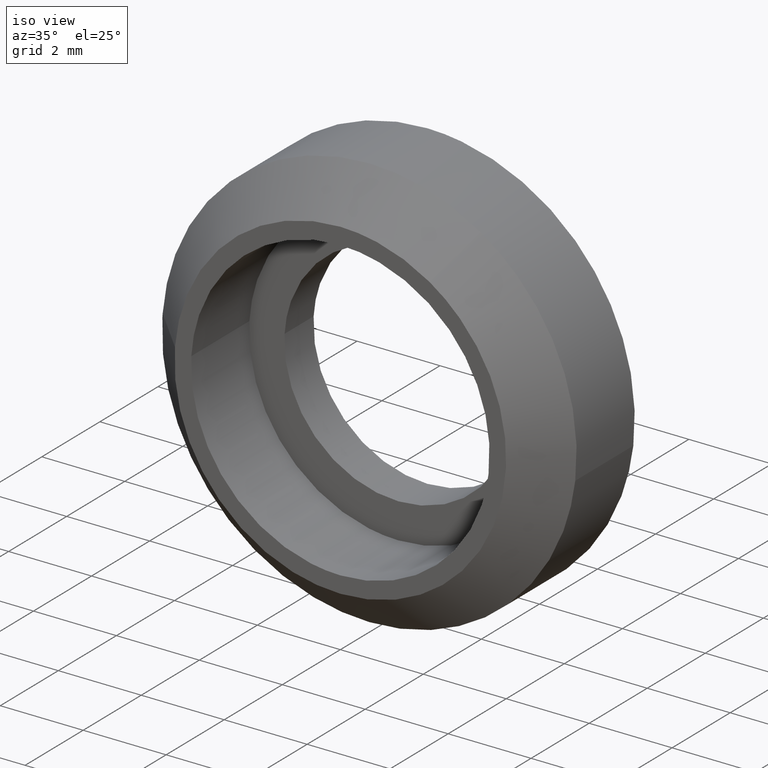
[diagram: clean part render]
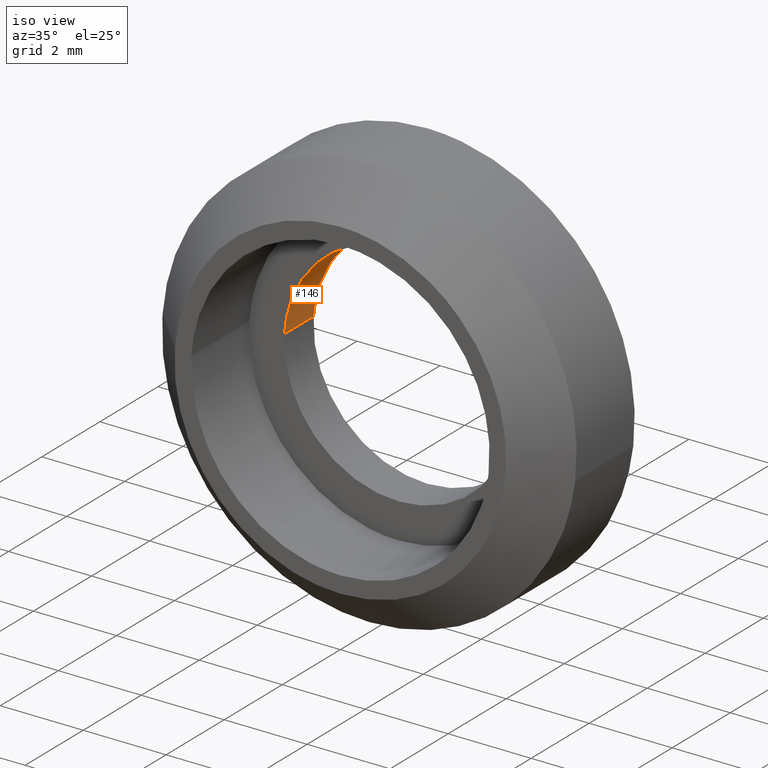
[diagram: same view with one face highlighted and labeled with its STEP entity id]
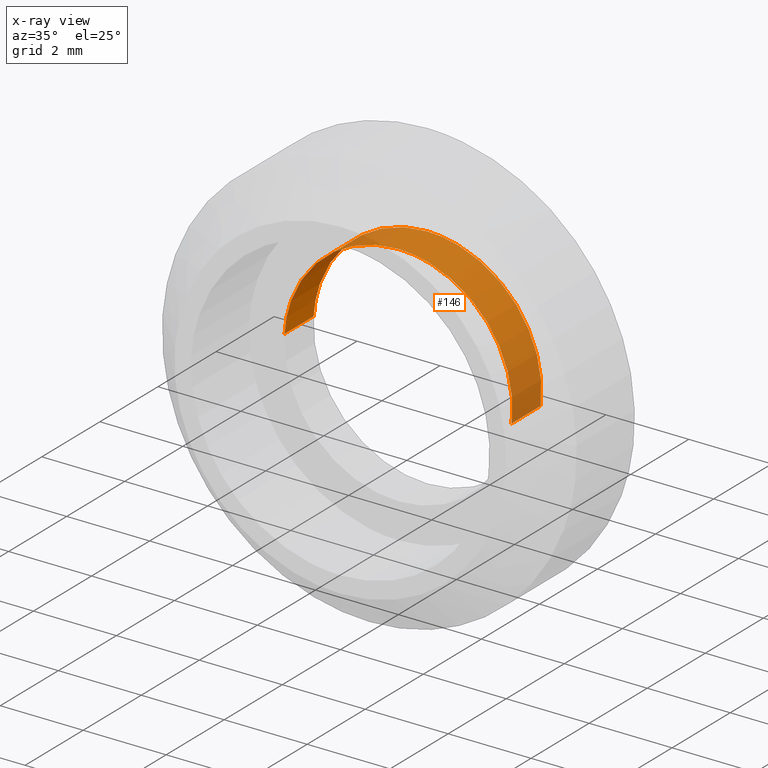
[diagram: x-ray of the same camera — body ghosted, the highlighted face saturated]
A machine part, iso view. The second image highlights one B-rep face of the part: STEP entity #146.
The next image is the same camera in x-ray: the body ghosted, the highlighted face saturated — about 84% of this face is hidden behind the body in this view.
In plain terms, the highlighted face is a freeform B-spline surface patch.
Its self-contained STEP definition (entity closure, byte-faithful):
#44=CARTESIAN_POINT('',(2.730776197500084,1.025000000000000,-0.324594145306086));
#45=CARTESIAN_POINT('',(2.740065942483667,1.025000000000000,-0.246440503754439));
#46=CARTESIAN_POINT('',(2.744870695660134,1.025000000000000,-0.167883483720857));
#47=CARTESIAN_POINT('',(2.912754179380990,1.025000000000000,2.576987211939278));
#48=CARTESIAN_POINT('',(0.167883483720857,1.025000000000000,2.744870695660134));
#49=CARTESIAN_POINT('',(-2.576987211939278,1.025000000000000,2.912754179380990));
#50=CARTESIAN_POINT('',(-2.744870695660133,1.025000000000000,0.167883483720857));
#51=CARTESIAN_POINT('',(2.730776197500084,-0.025625000000000,-0.324594145306086));
#52=CARTESIAN_POINT('',(2.740065942483667,-0.025625000000000,-0.246440503754439));
#53=CARTESIAN_POINT('',(2.744870695660134,-0.025625000000000,-0.167883483720857));
#54=CARTESIAN_POINT('',(2.912754179380990,-0.025625000000000,2.576987211939278));
#55=CARTESIAN_POINT('',(0.167883483720857,-0.025625000000000,2.744870695660134));
#56=CARTESIAN_POINT('',(-2.576987211939278,-0.025625000000000,2.912754179380990));
#57=CARTESIAN_POINT('',(-2.744870695660133,-0.025625000000000,0.167883483720857));
#65=(BOUNDED_SURFACE()B_SPLINE_SURFACE(2,1,((#44,#51),(#45,#52),(#46,#53),(#47,#54),(#48,#55),(#49,#56),(#50,#57)),.UNSPECIFIED.,.F.,.F.,.U.)B_SPLINE_SURFACE_WITH_KNOTS((3,2,2,3),(2,2),(0.0,0.182253967444162,4.738603153548208,9.294952339652255),(0.0,1.0),.UNSPECIFIED.)GEOMETRIC_REPRESENTATION_ITEM()RATIONAL_B_SPLINE_SURFACE(((0.977505800795127,0.977505800795127),(0.988284271247462,0.988284271247462),(1.0,1.0),(0.707106781186548,0.707106781186548),(1.0,1.0),(0.707106781186548,0.707106781186548),(1.0,1.0)))REPRESENTATION_ITEM('')SURFACE());
#66=CARTESIAN_POINT('',(2.730776418423933,1.000000000000025,-0.324592286686328));
#67=VERTEX_POINT('',#66);
#68=CARTESIAN_POINT('',(4.898425E-016,1.0,2.750000000000000));
#69=VERTEX_POINT('',#68);
#70=CARTESIAN_POINT('',(2.730776418423933,1.000000000000025,-0.324592286686328));
#71=CARTESIAN_POINT('',(2.750000000000001,1.0,-0.162865389908423));
#72=CARTESIAN_POINT('',(2.750000000000000,1.0,0.0));
#73=CARTESIAN_POINT('',(2.750000000000000,1.0,2.750000000000000));
#74=CARTESIAN_POINT('',(4.898425E-016,1.0,2.750000000000000));
#82=(BOUNDED_CURVE()B_SPLINE_CURVE(2,(#70,#71,#72,#73,#74),.UNSPECIFIED.,.F.,.U.)B_SPLINE_CURVE_WITH_KNOTS((3,2,3),(0.229562588542570,0.250000000000000,0.500000000000000),.UNSPECIFIED.)CURVE()GEOMETRIC_REPRESENTATION_ITEM()RATIONAL_B_SPLINE_CURVE((0.956026979645492,0.976056083096074,1.0,0.707106781186548,1.0))REPRESENTATION_ITEM(''));
#83=EDGE_CURVE('',#67,#69,#82,.T.);
#84=ORIENTED_EDGE('',*,*,#83,.F.);
#85=CARTESIAN_POINT('',(2.730776415759834,5.323928E-018,-0.324592309099363));
#86=VERTEX_POINT('',#85);
#87=CARTESIAN_POINT('',(2.730776418423933,1.000000000000025,-0.324592286686328));
#88=CARTESIAN_POINT('',(2.730776415759834,5.323928E-018,-0.324592309099363));
#89=QUASI_UNIFORM_CURVE('',1,(#87,#88),.UNSPECIFIED.,.F.,.U.);
#90=EDGE_CURVE('',#67,#86,#89,.T.);
#91=ORIENTED_EDGE('',*,*,#90,.T.);
#92=CARTESIAN_POINT('',(4.898425E-016,0.0,2.750000000000000));
#93=VERTEX_POINT('',#92);
#94=CARTESIAN_POINT('',(2.730776415759835,5.323928E-018,-0.324592309099363));
#95=CARTESIAN_POINT('',(2.750000000000000,0.0,-0.162865401233412));
#96=CARTESIAN_POINT('',(2.750000000000000,0.0,0.0));
#97=CARTESIAN_POINT('',(2.750000000000000,0.0,2.750000000000000));
#98=CARTESIAN_POINT('',(4.898425E-016,0.0,2.750000000000000));
#106=(BOUNDED_CURVE()B_SPLINE_CURVE(2,(#94,#95,#96,#97,#98),.UNSPECIFIED.,.F.,.U.)B_SPLINE_CURVE_WITH_KNOTS((3,2,3),(0.229562587155464,0.250000000000000,0.500000000000000),.UNSPECIFIED.)CURVE()GEOMETRIC_REPRESENTATION_ITEM()RATIONAL_B_SPLINE_CURVE((0.956026976926705,0.976056081470978,1.0,0.707106781186548,1.0))REPRESENTATION_ITEM(''));
#107=EDGE_CURVE('',#86,#93,#106,.T.);
#108=ORIENTED_EDGE('',*,*,#107,.T.);
#109=CARTESIAN_POINT('',(-2.744870870186102,-5.204170E-017,0.167880630197805));
#110=VERTEX_POINT('',#109);
#111=CARTESIAN_POINT('',(4.898425E-016,0.0,2.750000000000000));
#112=CARTESIAN_POINT('',(-2.586944378359961,0.0,2.750000000000000));
#113=CARTESIAN_POINT('',(-2.744870870186103,-5.204170E-017,0.167880630197805));
#121=(BOUNDED_CURVE()B_SPLINE_CURVE(2,(#111,#112,#113),.UNSPECIFIED.,.F.,.U.)B_SPLINE_CURVE_WITH_KNOTS((3,3),(0.500000000000000,0.739333141618836),.UNSPECIFIED.)CURVE()GEOMETRIC_REPRESENTATION_ITEM()RATIONAL_B_SPLINE_CURVE((1.0,0.719603783130093,0.976072426112277))REPRESENTATION_ITEM(''));
#122=EDGE_CURVE('',#93,#110,#121,.T.);
#123=ORIENTED_EDGE('',*,*,#122,.T.);
#124=CARTESIAN_POINT('',(-2.744870872313038,0.999999999999963,0.167880595421523));
#125=VERTEX_POINT('',#124);
#126=CARTESIAN_POINT('',(-2.744870872313038,0.999999999999963,0.167880595421523));
#127=CARTESIAN_POINT('',(-2.744870870186102,-5.204170E-017,0.167880630197805));
#128=QUASI_UNIFORM_CURVE('',1,(#126,#127),.UNSPECIFIED.,.F.,.U.);
#129=EDGE_CURVE('',#125,#110,#128,.T.);
#130=ORIENTED_EDGE('',*,*,#129,.F.);
#131=CARTESIAN_POINT('',(4.898425E-016,1.0,2.750000000000000));
#132=CARTESIAN_POINT('',(-2.586944411196626,1.0,2.750000000000001));
#133=CARTESIAN_POINT('',(-2.744870872313038,0.999999999999963,0.167880595421523));
#141=(BOUNDED_CURVE()B_SPLINE_CURVE(2,(#131,#132,#133),.UNSPECIFIED.,.F.,.U.)B_SPLINE_CURVE_WITH_KNOTS((3,3),(0.500000000000000,0.739333143804927),.UNSPECIFIED.)CURVE()GEOMETRIC_REPRESENTATION_ITEM()RATIONAL_B_SPLINE_CURVE((1.0,0.719603780568928,0.976072430797494))REPRESENTATION_ITEM(''));
#142=EDGE_CURVE('',#69,#125,#141,.T.);
#143=ORIENTED_EDGE('',*,*,#142,.F.);
#144=EDGE_LOOP('',(#84,#91,#108,#123,#130,#143));
#145=FACE_OUTER_BOUND('',#144,.T.);
#146=ADVANCED_FACE('',(#145),#65,.F.);